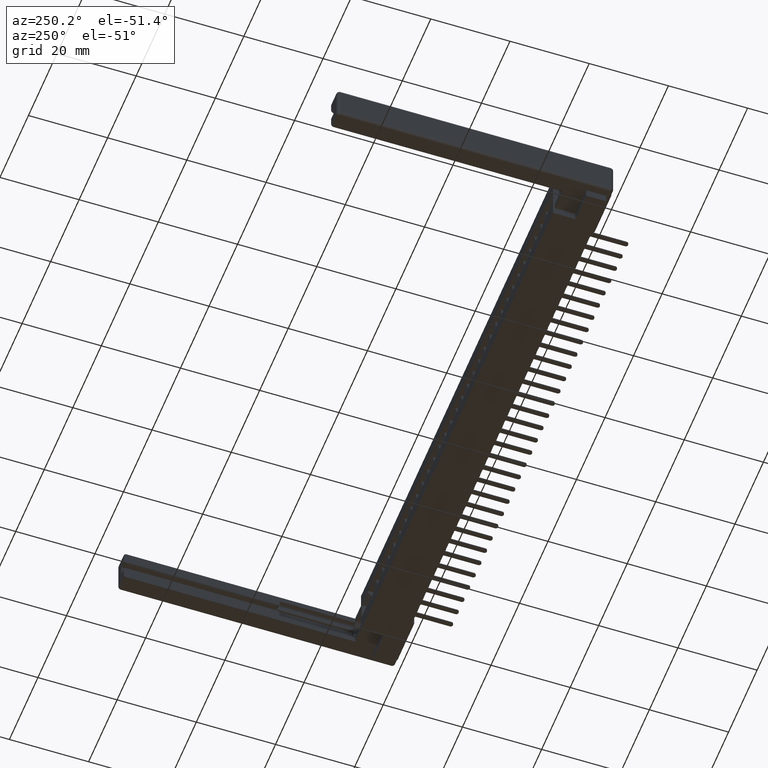
[diagram: clean part render]
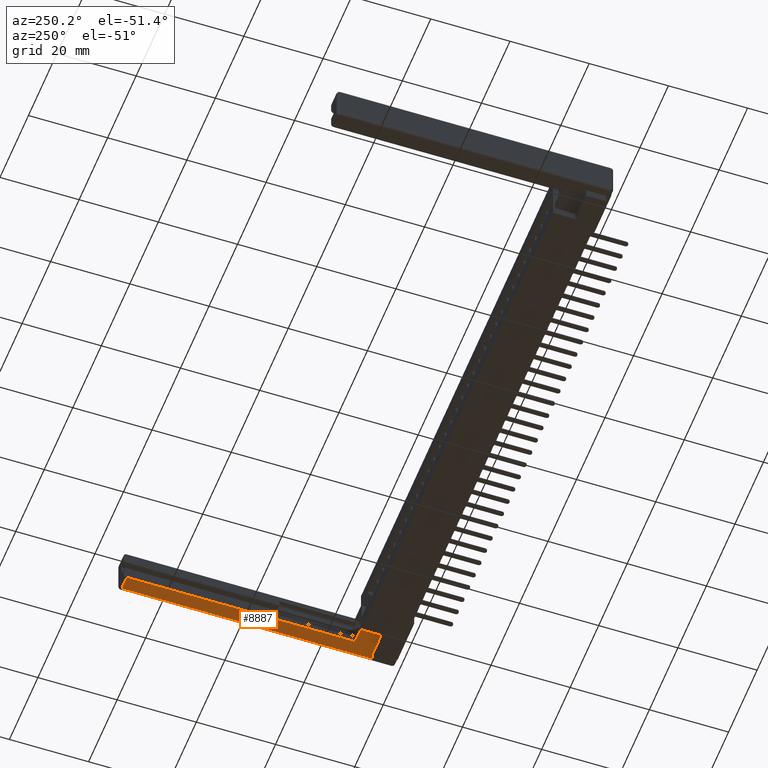
[diagram: same view with one face highlighted and labeled with its STEP entity id]
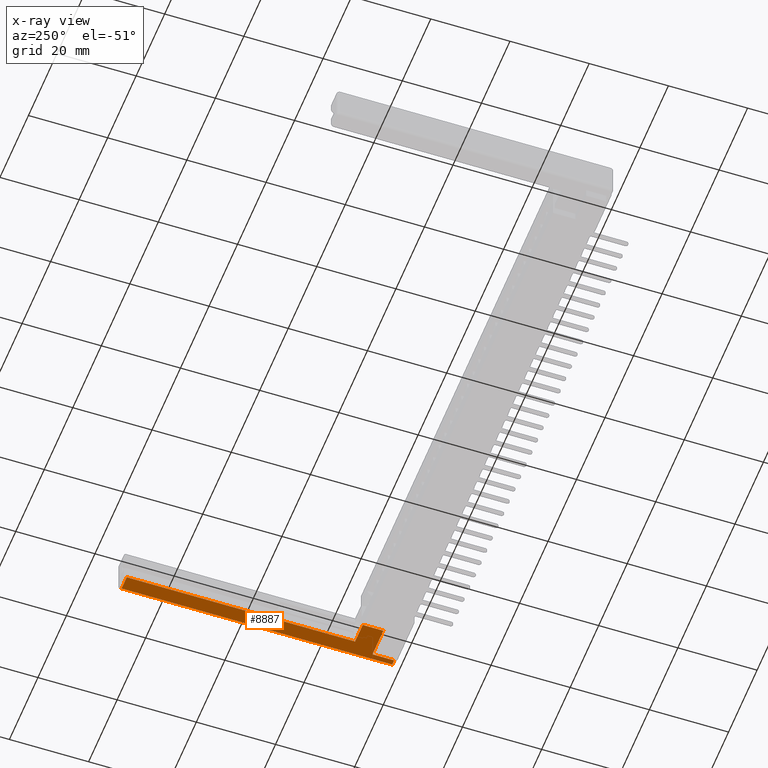
[diagram: x-ray of the same camera — body ghosted, the highlighted face saturated]
A machine part, auxiliary view. The second image highlights one B-rep face of the part: STEP entity #8887.
The next image is the same camera in x-ray: the body ghosted, the highlighted face saturated — about 0% of this face is hidden behind the body in this view.
In plain terms, the highlighted planar face has unit normal (0, 0, 1).
Its self-contained STEP definition (entity closure, byte-faithful):
#80 = VERTEX_POINT ( 'NONE', #14618 ) ;
#244 = DIRECTION ( 'NONE',  ( -0.0000000000000000000, 1.000000000000000000, -0.0000000000000000000 ) ) ;
#375 = LINE ( 'NONE', #691, #29659 ) ;
#529 = DIRECTION ( 'NONE',  ( -1.000000000000000000, -0.0000000000000000000, -0.0000000000000000000 ) ) ;
#691 = CARTESIAN_POINT ( 'NONE',  ( 0.08400000000000004685, 0.2449999999999999400, 0.0000000000000000000 ) ) ;
#846 = LINE ( 'NONE', #10521, #11956 ) ;
#1308 = EDGE_CURVE ( 'NONE', #4409, #15636, #31025, .T. ) ;
#1550 = EDGE_CURVE ( 'NONE', #29110, #80, #846, .T. ) ;
#2645 = CARTESIAN_POINT ( 'NONE',  ( 0.3840000000000000635, 0.4499999999999999556, 0.0000000000000000000 ) ) ;
#3253 = ORIENTED_EDGE ( 'NONE', *, *, #19048, .T. ) ;
#3950 = EDGE_CURVE ( 'NONE', #25074, #4409, #375, .T. ) ;
#4409 = VERTEX_POINT ( 'NONE', #28745 ) ;
#5334 = LINE ( 'NONE', #14989, #8197 ) ;
#5667 = CARTESIAN_POINT ( 'NONE',  ( 0.1730000000000000426, 0.4499999999999999556, 0.0000000000000000000 ) ) ;
#7185 = VERTEX_POINT ( 'NONE', #19590 ) ;
#8197 = VECTOR ( 'NONE', #529, 39.37007874015748143 ) ;
#8749 = ORIENTED_EDGE ( 'NONE', *, *, #23110, .T. ) ;
#8887 = ADVANCED_FACE ( 'NONE', ( #12424 ), #27056, .F. ) ;
#9021 = ORIENTED_EDGE ( 'NONE', *, *, #1550, .T. ) ;
#9263 = CARTESIAN_POINT ( 'NONE',  ( 0.08400000000000010236, 0.02999999999999997113, 0.0000000000000000000 ) ) ;
#9891 = CARTESIAN_POINT ( 'NONE',  ( 0.3840000000000000635, 0.2449999999999999956, 0.0000000000000000000 ) ) ;
#10055 = DIRECTION ( 'NONE',  ( -0.0000000000000000000, 1.000000000000000000, -0.0000000000000000000 ) ) ;
#10447 = LINE ( 'NONE', #17281, #22733 ) ;
#10521 = CARTESIAN_POINT ( 'NONE',  ( 0.1730000000000000426, 2.750000000000000000, 0.0000000000000000000 ) ) ;
#11072 = CARTESIAN_POINT ( 'NONE',  ( 0.08400000000000007461, 0.02999999999999998848, 0.0000000000000000000 ) ) ;
#11371 = ORIENTED_EDGE ( 'NONE', *, *, #19516, .T. ) ;
#11567 = VECTOR ( 'NONE', #23030, 39.37007874015748143 ) ;
#11775 = AXIS2_PLACEMENT_3D ( 'NONE', #20399, #22142, #30058 ) ;
#11956 = VECTOR ( 'NONE', #10055, 39.37007874015748143 ) ;
#12424 = FACE_OUTER_BOUND ( 'NONE', #25759, .T. ) ;
#12508 = DIRECTION ( 'NONE',  ( 0.0000000000000000000, -1.000000000000000000, 0.0000000000000000000 ) ) ;
#14027 = DIRECTION ( 'NONE',  ( 1.000000000000000000, -3.508568016442572777E-16, 0.0000000000000000000 ) ) ;
#14618 = CARTESIAN_POINT ( 'NONE',  ( 0.1730000000000000426, 2.719999999999999751, 0.0000000000000000000 ) ) ;
#14698 = LINE ( 'NONE', #2645, #17112 ) ;
#14919 = ORIENTED_EDGE ( 'NONE', *, *, #27989, .T. ) ;
#14989 = CARTESIAN_POINT ( 'NONE',  ( 0.1730000000000000426, 0.4499999999999999556, 0.0000000000000000000 ) ) ;
#15161 = ORIENTED_EDGE ( 'NONE', *, *, #3950, .T. ) ;
#15636 = VERTEX_POINT ( 'NONE', #26960 ) ;
#16016 = LINE ( 'NONE', #25559, #11567 ) ;
#17112 = VECTOR ( 'NONE', #244, 39.37007874015748143 ) ;
#17167 = EDGE_CURVE ( 'NONE', #80, #20941, #16016, .T. ) ;
#17281 = CARTESIAN_POINT ( 'NONE',  ( 0.02999999999999999889, 0.0000000000000000000, 0.0000000000000000000 ) ) ;
#18381 = CARTESIAN_POINT ( 'NONE',  ( 0.02999999999999999889, 2.719999999999999751, 0.0000000000000000000 ) ) ;
#19048 = EDGE_CURVE ( 'NONE', #15636, #28681, #14698, .T. ) ;
#19516 = EDGE_CURVE ( 'NONE', #20941, #7185, #10447, .T. ) ;
#19590 = CARTESIAN_POINT ( 'NONE',  ( 0.02999999999999999889, 0.02999999999999998848, 0.0000000000000000000 ) ) ;
#19616 = DIRECTION ( 'NONE',  ( 1.000000000000000000, 1.138269997360109674E-16, -0.0000000000000000000 ) ) ;
#19767 = VECTOR ( 'NONE', #19616, 39.37007874015748143 ) ;
#19778 = DIRECTION ( 'NONE',  ( -1.393799996767481304E-16, 1.000000000000000000, -0.0000000000000000000 ) ) ;
#20399 = CARTESIAN_POINT ( 'NONE',  ( 0.0000000000000000000, 0.0000000000000000000, 0.0000000000000000000 ) ) ;
#20852 = ORIENTED_EDGE ( 'NONE', *, *, #1308, .T. ) ;
#20941 = VERTEX_POINT ( 'NONE', #18381 ) ;
#21056 = LINE ( 'NONE', #9263, #21073 ) ;
#21073 = VECTOR ( 'NONE', #14027, 39.37007874015748143 ) ;
#22142 = DIRECTION ( 'NONE',  ( 0.0000000000000000000, 0.0000000000000000000, -1.000000000000000000 ) ) ;
#22733 = VECTOR ( 'NONE', #12508, 39.37007874015748143 ) ;
#23030 = DIRECTION ( 'NONE',  ( -1.000000000000000000, 0.0000000000000000000, 0.0000000000000000000 ) ) ;
#23110 = EDGE_CURVE ( 'NONE', #28681, #29110, #5334, .T. ) ;
#25074 = VERTEX_POINT ( 'NONE', #11072 ) ;
#25559 = CARTESIAN_POINT ( 'NONE',  ( 0.0000000000000000000, 2.719999999999999751, 0.0000000000000000000 ) ) ;
#25759 = EDGE_LOOP ( 'NONE', ( #9021, #28686, #11371, #14919, #15161, #20852, #3253, #8749 ) ) ;
#26960 = CARTESIAN_POINT ( 'NONE',  ( 0.3840000000000000635, 0.2449999999999999956, 0.0000000000000000000 ) ) ;
#27056 = PLANE ( 'NONE',  #11775 ) ;
#27989 = EDGE_CURVE ( 'NONE', #7185, #25074, #21056, .T. ) ;
#28681 = VERTEX_POINT ( 'NONE', #29671 ) ;
#28686 = ORIENTED_EDGE ( 'NONE', *, *, #17167, .T. ) ;
#28745 = CARTESIAN_POINT ( 'NONE',  ( 0.08400000000000004685, 0.2449999999999999400, 0.0000000000000000000 ) ) ;
#29110 = VERTEX_POINT ( 'NONE', #5667 ) ;
#29659 = VECTOR ( 'NONE', #19778, 39.37007874015748143 ) ;
#29671 = CARTESIAN_POINT ( 'NONE',  ( 0.3840000000000000635, 0.4499999999999999556, 0.0000000000000000000 ) ) ;
#30058 = DIRECTION ( 'NONE',  ( -1.000000000000000000, 0.0000000000000000000, -0.0000000000000000000 ) ) ;
#31025 = LINE ( 'NONE', #9891, #19767 ) ;